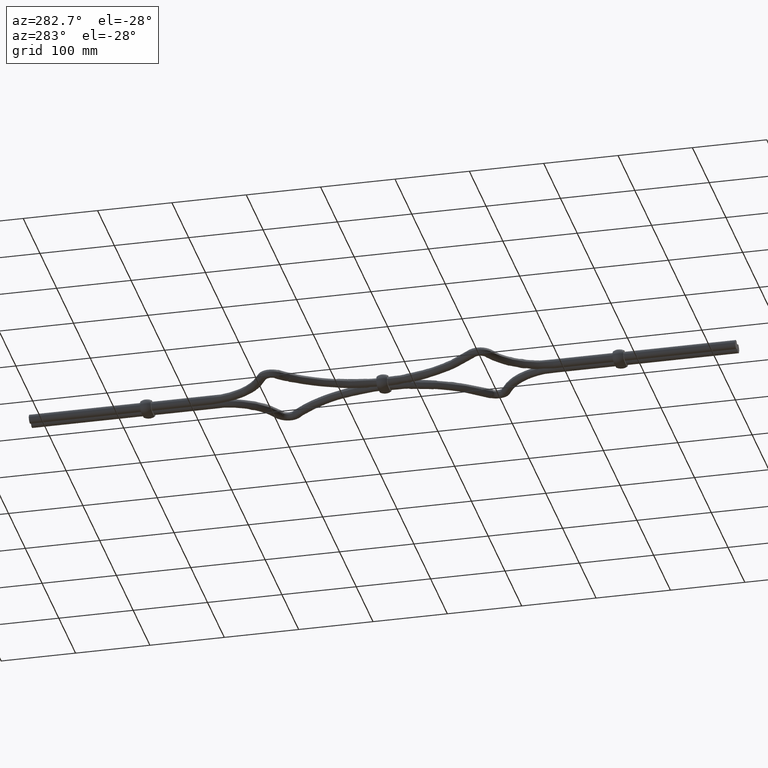
[diagram: clean part render]
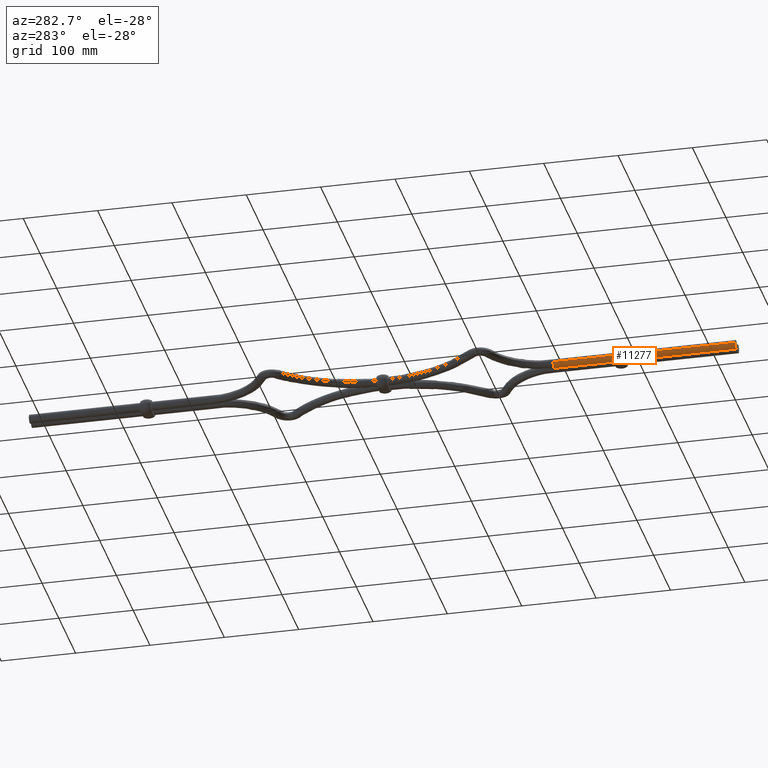
[diagram: same view with one face highlighted and labeled with its STEP entity id]
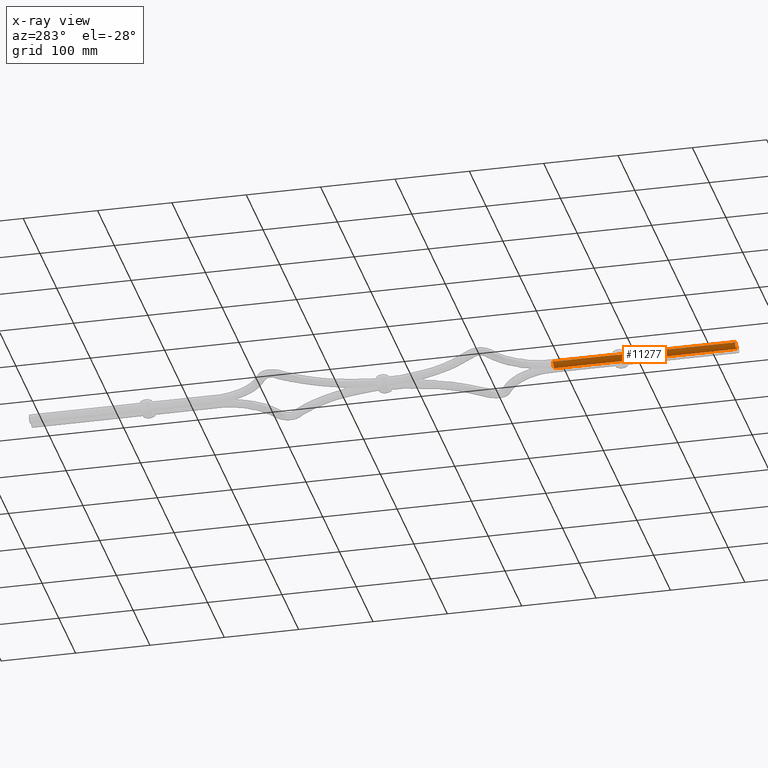
[diagram: x-ray of the same camera — body ghosted, the highlighted face saturated]
A machine part, auxiliary view. The second image highlights one B-rep face of the part: STEP entity #11277.
The next image is the same camera in x-ray: the body ghosted, the highlighted face saturated — about 0% of this face is hidden behind the body in this view.
In plain terms, the highlighted cylindrical surface (edge-blend (fillet) strip) has radius 6 mm, axis along (0, -1, -0).
Its self-contained STEP definition (entity closure, byte-faithful):
#1238 = CYLINDRICAL_SURFACE ( 'NONE', #15838, 6.000000000000001800 ) ;
#2027 = AXIS2_PLACEMENT_3D ( 'NONE', #5930, #15032, #7227 ) ;
#2206 = CARTESIAN_POINT ( 'NONE',  ( -12.00000000000000000, -25.00000000000000000, 0.0000000000000000000 ) ) ;
#2434 = DIRECTION ( 'NONE',  ( 2.832201593431626600E-017, -1.000000000000000000, -0.0000000000000000000 ) ) ;
#3629 = ORIENTED_EDGE ( 'NONE', *, *, #15098, .F. ) ;
#3832 = VERTEX_POINT ( 'NONE', #13510 ) ;
#3879 = CARTESIAN_POINT ( 'NONE',  ( -6.000000000000005300, 219.9999999991717900, 0.0000000000000000000 ) ) ;
#4120 = LINE ( 'NONE', #6211, #14523 ) ;
#4843 = VERTEX_POINT ( 'NONE', #6049 ) ;
#4850 = CIRCLE ( 'NONE', #4960, 6.000000000000000900 ) ;
#4960 = AXIS2_PLACEMENT_3D ( 'NONE', #10251, #2434, #11565 ) ;
#5811 = EDGE_LOOP ( 'NONE', ( #8353, #15279, #9822, #3629 ) ) ;
#5930 = CARTESIAN_POINT ( 'NONE',  ( -5.999999999999998200, -25.00000000000000000, 0.0000000000000000000 ) ) ;
#5981 = LINE ( 'NONE', #9106, #9037 ) ;
#6049 = CARTESIAN_POINT ( 'NONE',  ( -12.00000000000000700, 219.9999999991717900, 0.0000000000000000000 ) ) ;
#6211 = CARTESIAN_POINT ( 'NONE',  ( -4.336808689942017700E-015, 219.9999999991717900, -7.347880794884120700E-016 ) ) ;
#7227 = DIRECTION ( 'NONE',  ( 1.000000000000000000, 0.0000000000000000000, 0.0000000000000000000 ) ) ;
#7737 = DIRECTION ( 'NONE',  ( 2.832201593441096000E-017, -1.000000000000000000, -0.0000000000000000000 ) ) ;
#7857 = EDGE_CURVE ( 'NONE', #4843, #3832, #4850, .T. ) ;
#8353 = ORIENTED_EDGE ( 'NONE', *, *, #7857, .T. ) ;
#8587 = VERTEX_POINT ( 'NONE', #13177 ) ;
#9037 = VECTOR ( 'NONE', #10419, 1000.000000000000000 ) ;
#9106 = CARTESIAN_POINT ( 'NONE',  ( -12.00000000000000700, 219.9999999991717900, 0.0000000000000000000 ) ) ;
#9822 = ORIENTED_EDGE ( 'NONE', *, *, #14882, .F. ) ;
#10251 = CARTESIAN_POINT ( 'NONE',  ( -6.000000000000005300, 219.9999999991717900, 0.0000000000000000000 ) ) ;
#10419 = DIRECTION ( 'NONE',  ( 2.832201593441096000E-017, -1.000000000000000000, -0.0000000000000000000 ) ) ;
#11277 = ADVANCED_FACE ( 'NONE', ( #15149 ), #1238, .T. ) ;
#11393 = DIRECTION ( 'NONE',  ( 2.832201593441096000E-017, -1.000000000000000000, -0.0000000000000000000 ) ) ;
#11565 = DIRECTION ( 'NONE',  ( 1.000000000000000000, 0.0000000000000000000, 0.0000000000000000000 ) ) ;
#12903 = EDGE_CURVE ( 'NONE', #3832, #8587, #4120, .T. ) ;
#12984 = DIRECTION ( 'NONE',  ( -1.000000000000000000, 0.0000000000000000000, 0.0000000000000000000 ) ) ;
#13177 = CARTESIAN_POINT ( 'NONE',  ( 3.469446951953614200E-015, -25.00000000000000000, -7.347880794884124700E-016 ) ) ;
#13510 = CARTESIAN_POINT ( 'NONE',  ( -4.336808689942017700E-015, 219.9999999991717900, -7.347880794884120700E-016 ) ) ;
#14142 = CIRCLE ( 'NONE', #2027, 6.000000000000000900 ) ;
#14523 = VECTOR ( 'NONE', #11393, 1000.000000000000000 ) ;
#14882 = EDGE_CURVE ( 'NONE', #16057, #8587, #14142, .T. ) ;
#15032 = DIRECTION ( 'NONE',  ( 2.832201593431626600E-017, -1.000000000000000000, -0.0000000000000000000 ) ) ;
#15098 = EDGE_CURVE ( 'NONE', #4843, #16057, #5981, .T. ) ;
#15149 = FACE_OUTER_BOUND ( 'NONE', #5811, .T. ) ;
#15279 = ORIENTED_EDGE ( 'NONE', *, *, #12903, .T. ) ;
#15838 = AXIS2_PLACEMENT_3D ( 'NONE', #3879, #7737, #12984 ) ;
#16057 = VERTEX_POINT ( 'NONE', #2206 ) ;